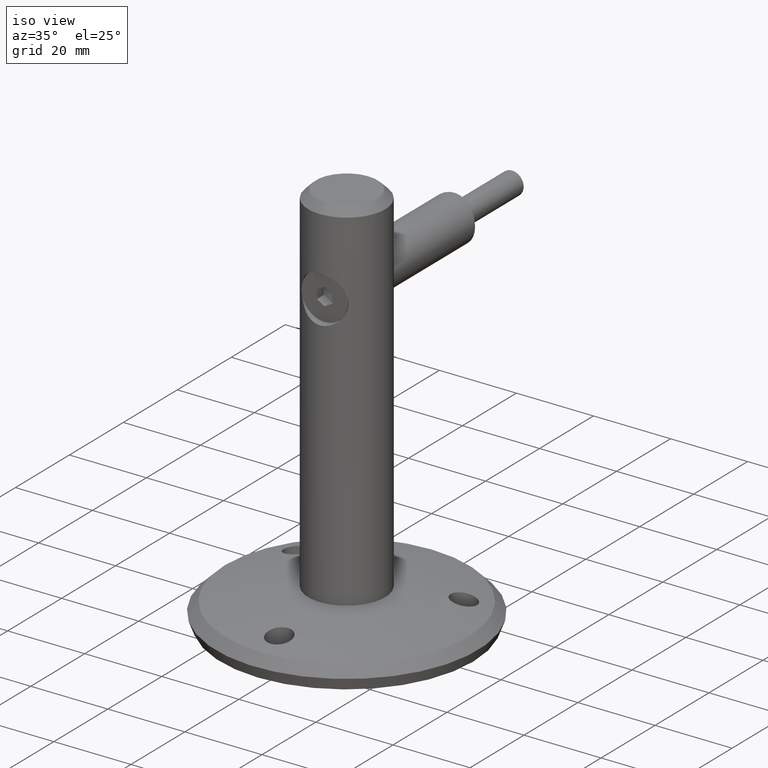
[diagram: clean part render]
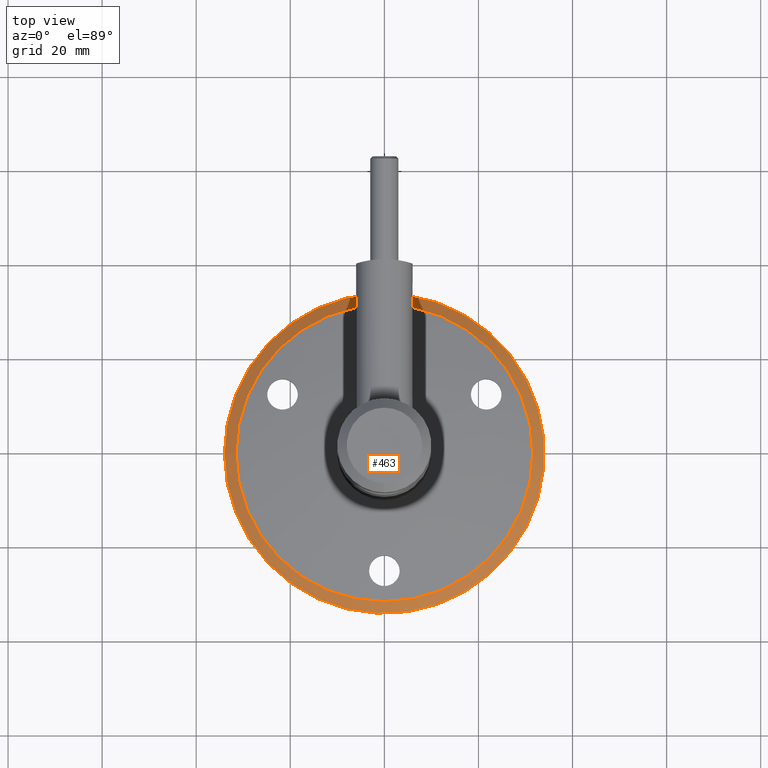
[diagram: tour spotlight — one face highlighted and labeled with its STEP entity id]
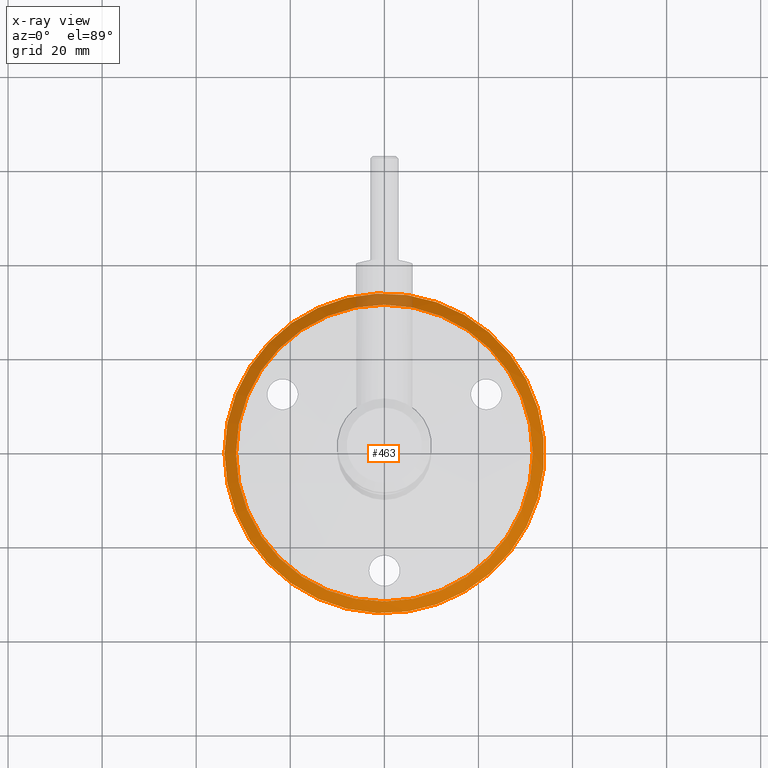
[diagram: x-ray of the same camera — body ghosted, this tour face saturated]
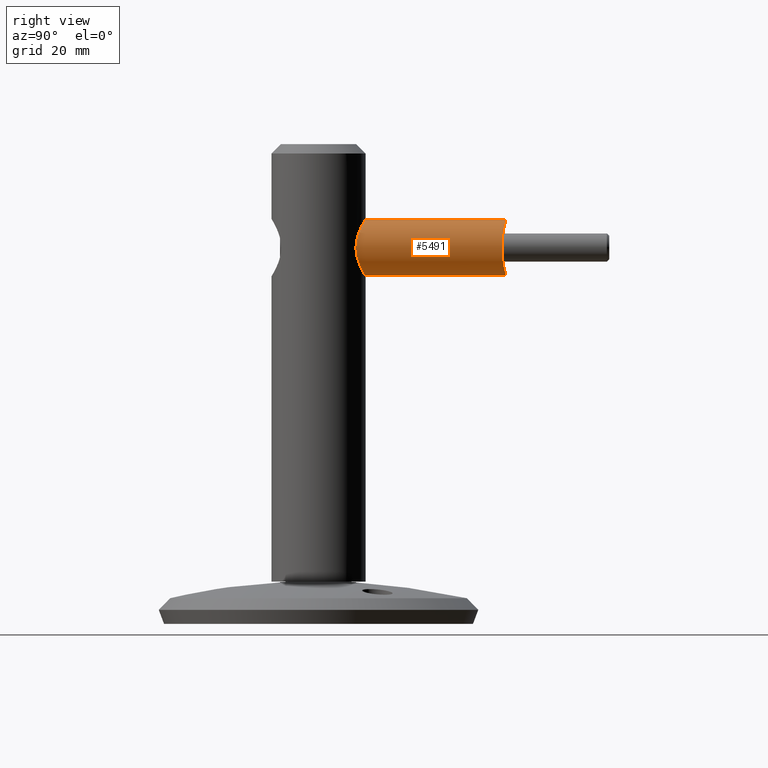
[diagram: tour spotlight — one face highlighted and labeled with its STEP entity id]
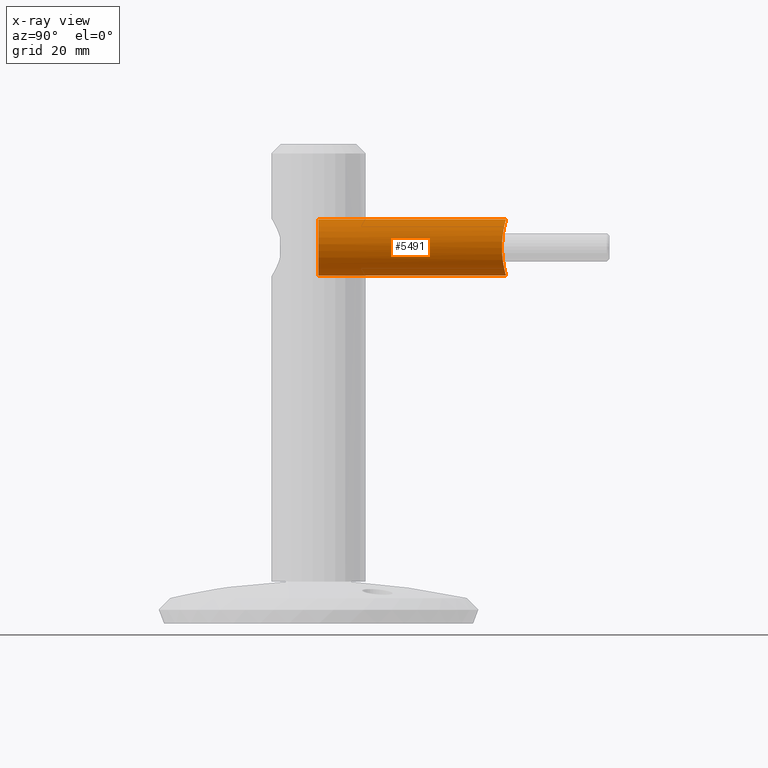
[diagram: x-ray of the same camera — body ghosted, this tour face saturated]
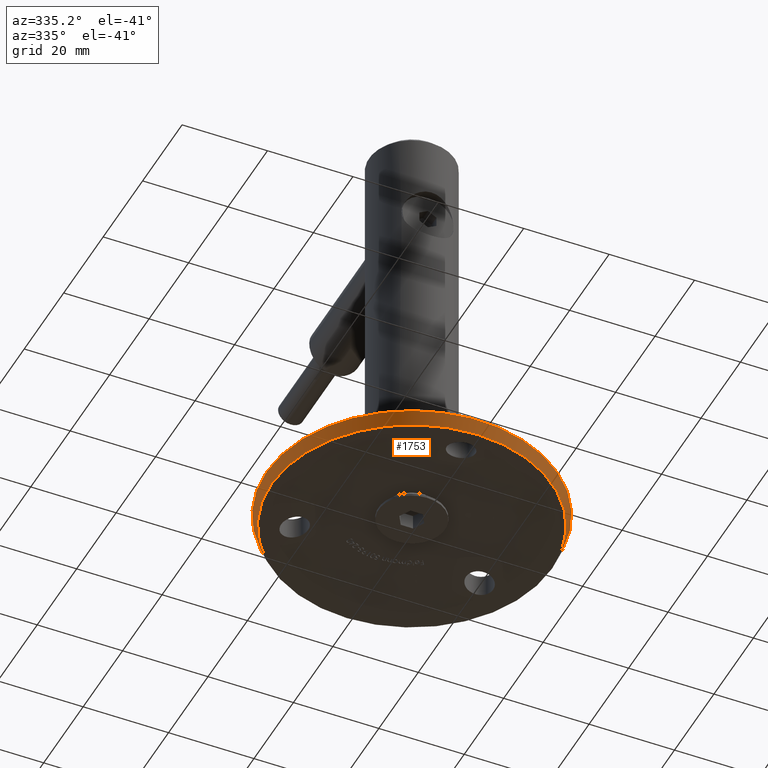
[diagram: tour spotlight — one face highlighted and labeled with its STEP entity id]
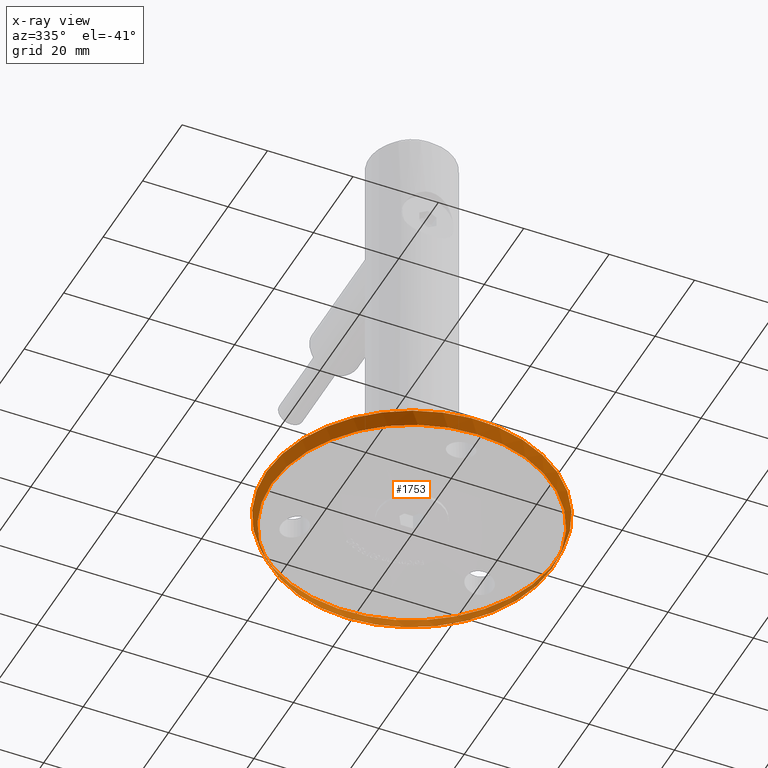
[diagram: x-ray of the same camera — body ghosted, this tour face saturated]
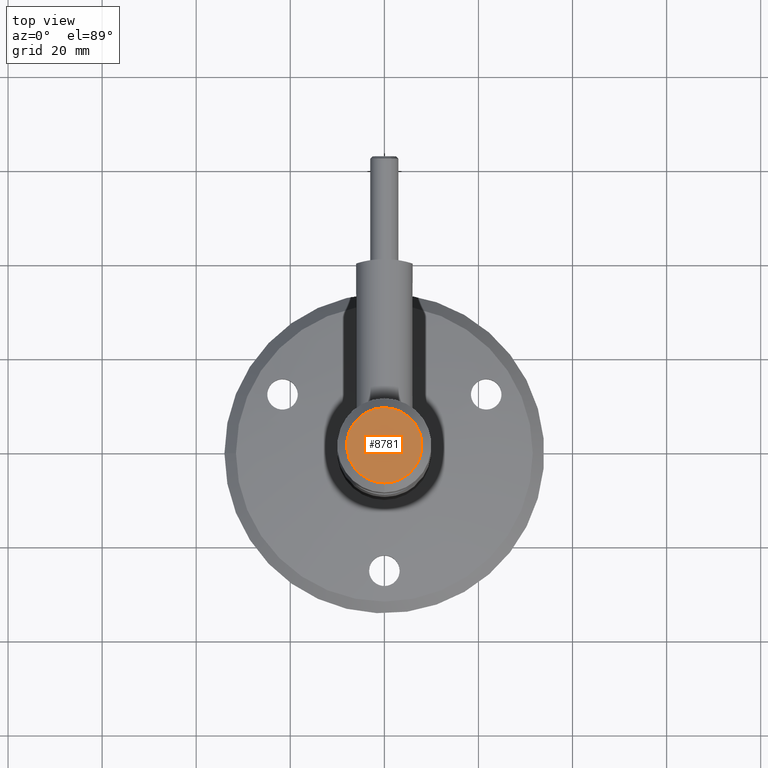
[diagram: tour spotlight — one face highlighted and labeled with its STEP entity id]
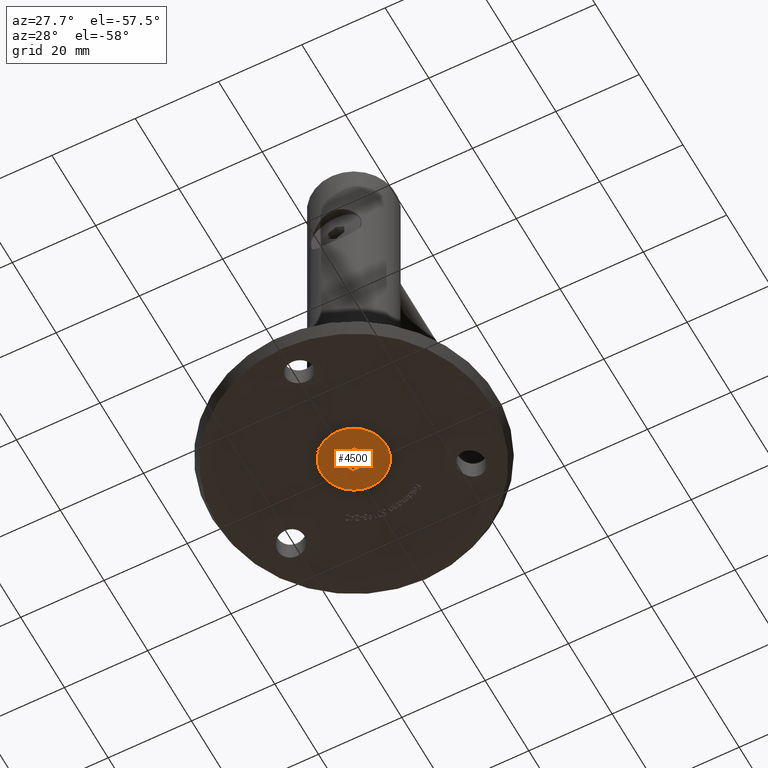
[diagram: tour spotlight — one face highlighted and labeled with its STEP entity id]
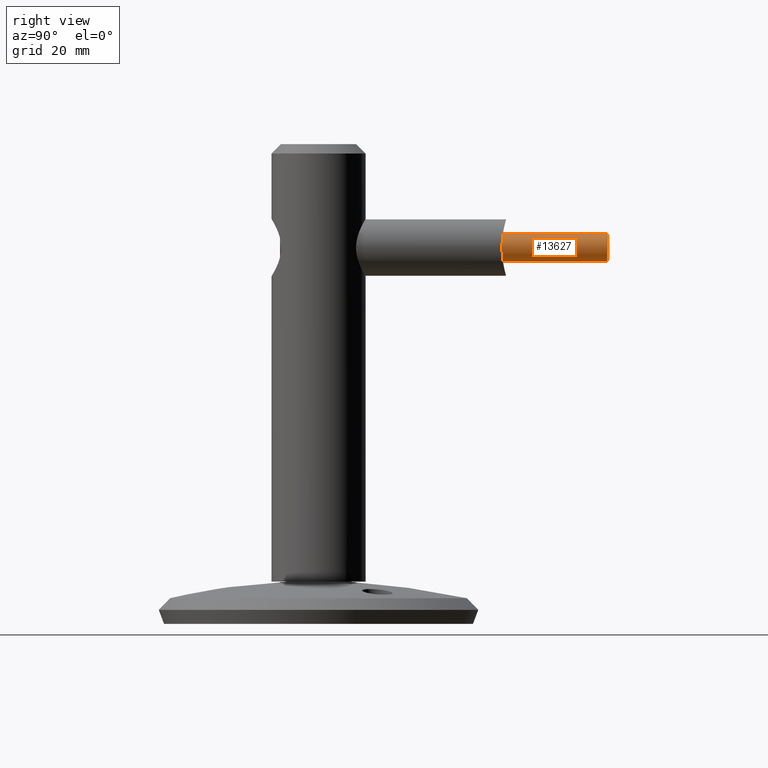
[diagram: tour spotlight — one face highlighted and labeled with its STEP entity id]
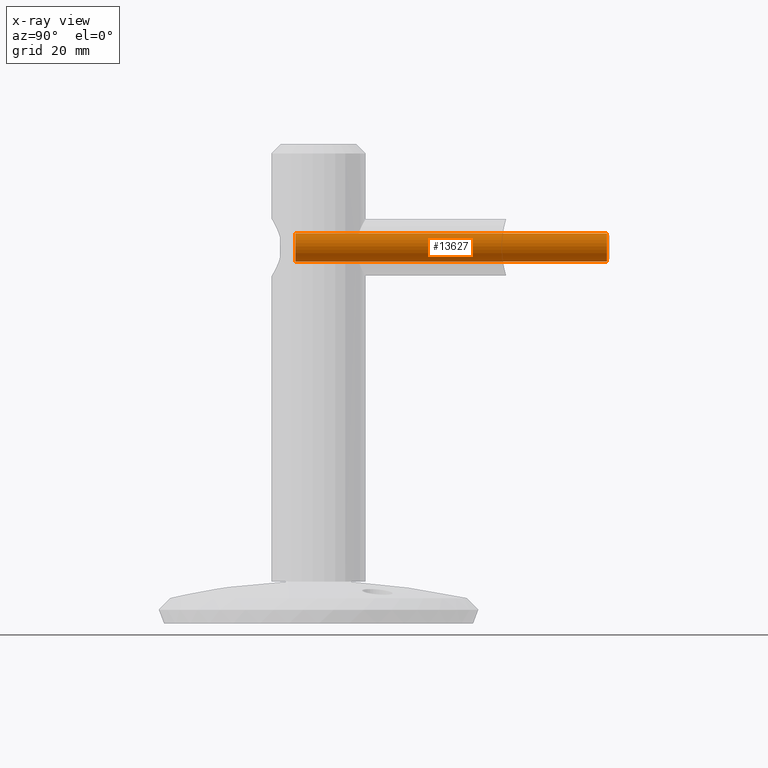
[diagram: x-ray of the same camera — body ghosted, this tour face saturated]
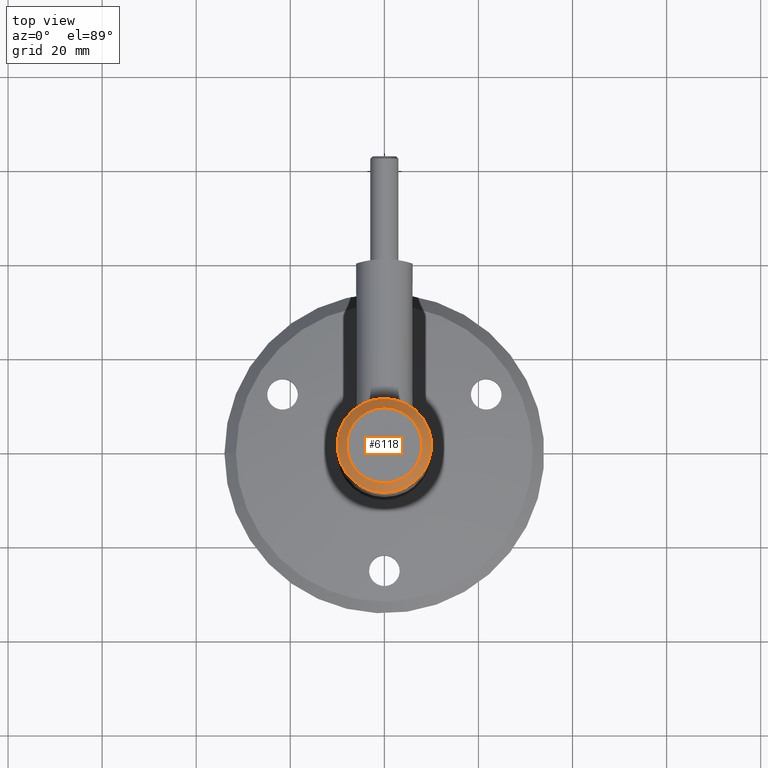
[diagram: tour spotlight — one face highlighted and labeled with its STEP entity id]
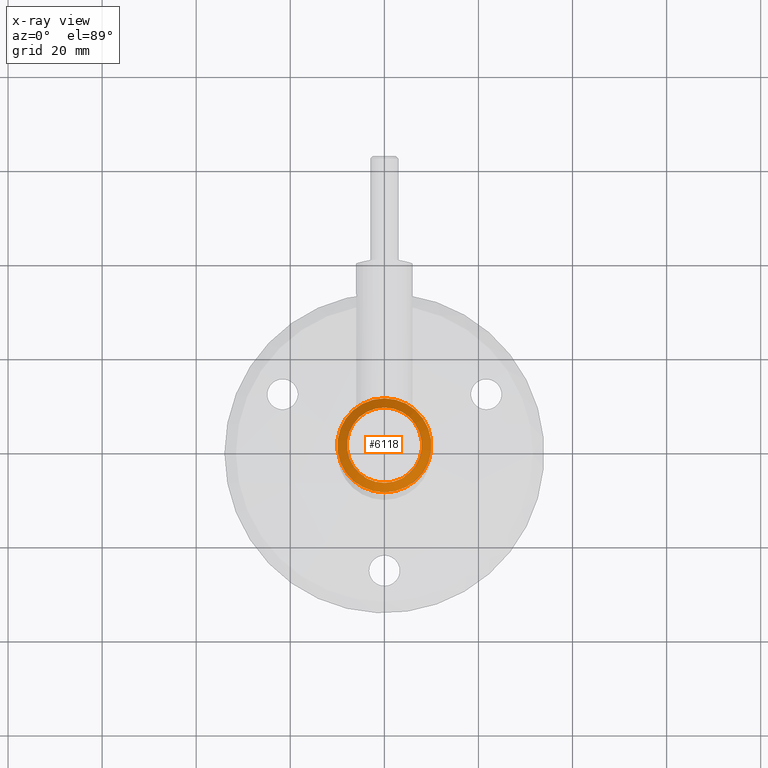
[diagram: x-ray of the same camera — body ghosted, this tour face saturated]
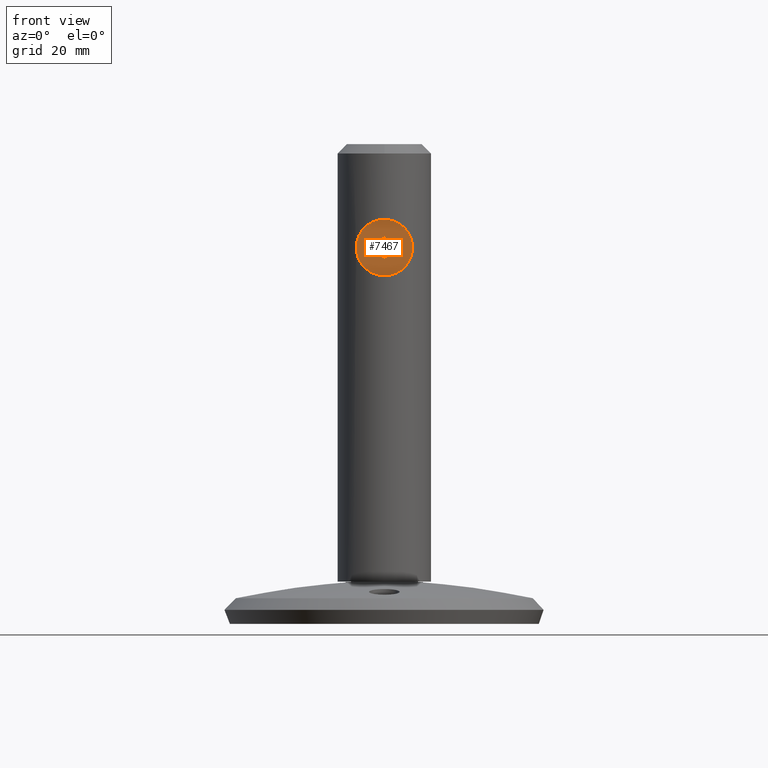
[diagram: tour spotlight — one face highlighted and labeled with its STEP entity id]
A machine part: a face-by-face anatomy tour. The part has 302 B-rep faces; the first image is the clean iso view, then the 8 largest visible faces are spotlighted one at a time (largest first), each with its STEP entity span.

Face 1 — top view, entity #463. An x-ray twin of the same camera follows (body ghosted, this face saturated) — the face is partly hidden behind the body. In plain terms, the highlighted conical surface has half-angle 44.713 deg.
Definition (entity closure, byte-faithful):
#463 = ADVANCED_FACE ( 'NONE', ( #2823, #14457 ), #3738, .T. ) ;
#668 = CARTESIAN_POINT ( 'NONE',  ( -31.55000000000002913, 1.323225072109827538, 0.000000000000000000 ) ) ;
#746 = ORIENTED_EDGE ( 'NONE', *, *, #3955, .F. ) ;
#957 = DIRECTION ( 'NONE',  ( 1.873600393855974325E-19, -1.000000000000000000, 0.000000000000000000 ) ) ;
#1200 = DIRECTION ( 'NONE',  ( -1.000000000000000000, 0.000000000000000000, 0.000000000000000000 ) ) ;
#2663 = EDGE_CURVE ( 'NONE', #5435, #5435, #12436, .T. ) ;
#2823 = FACE_BOUND ( 'NONE', #9307, .T. ) ;
#3738 = CONICAL_SURFACE ( 'NONE', #11033, 34.00000000000002842, 0.7803913443363523772 ) ;
#3955 = EDGE_CURVE ( 'NONE', #14690, #14690, #13344, .T. ) ;
#4212 = CARTESIAN_POINT ( 'NONE',  ( -34.00000000000002842, -1.151432000829118785, 0.000000000000000000 ) ) ;
#4388 = CARTESIAN_POINT ( 'NONE',  ( -2.479195016265073111E-19, 1.323225072109827538, 0.000000000000000000 ) ) ;
#5048 = CARTESIAN_POINT ( 'NONE',  ( 2.157323450251809556E-19, -1.151432000829118785, 0.000000000000000000 ) ) ;
#5435 = VERTEX_POINT ( 'NONE', #4212 ) ;
#8243 = AXIS2_PLACEMENT_3D ( 'NONE', #4388, #8259, #1200 ) ;
#8259 = DIRECTION ( 'NONE',  ( -1.873600393855974325E-19, 1.000000000000000000, 0.000000000000000000 ) ) ;
#9307 = EDGE_LOOP ( 'NONE', ( #746 ) ) ;
#9670 = DIRECTION ( 'NONE',  ( -1.000000000000000000, 0.000000000000000000, 0.000000000000000000 ) ) ;
#10693 = EDGE_LOOP ( 'NONE', ( #14526 ) ) ;
#11033 = AXIS2_PLACEMENT_3D ( 'NONE', #12652, #957, #13889 ) ;
#12027 = DIRECTION ( 'NONE',  ( -1.873600393855974325E-19, 1.000000000000000000, 0.000000000000000000 ) ) ;
#12436 = CIRCLE ( 'NONE', #13267, 34.00000000000002842 ) ;
#12652 = CARTESIAN_POINT ( 'NONE',  ( 2.157323450251809556E-19, -1.151432000829118785, 0.000000000000000000 ) ) ;
#13267 = AXIS2_PLACEMENT_3D ( 'NONE', #5048, #12027, #9670 ) ;
#13344 = CIRCLE ( 'NONE', #8243, 31.55000000000002913 ) ;
#13889 = DIRECTION ( 'NONE',  ( 1.000000000000000000, 0.000000000000000000, 0.000000000000000000 ) ) ;
#14457 = FACE_OUTER_BOUND ( 'NONE', #10693, .T. ) ;
#14526 = ORIENTED_EDGE ( 'NONE', *, *, #2663, .T. ) ;
#14690 = VERTEX_POINT ( 'NONE', #668 ) ;

Face 2 — right view, entity #5491. An x-ray twin of the same camera follows (body ghosted, this face saturated) — the face is partly hidden behind the body. In plain terms, the highlighted cylindrical surface (bore or boss wall) has radius 6 mm, axis along (-0, -1, -0).
Definition (entity closure, byte-faithful):
#38 = CARTESIAN_POINT ( 'NONE',  ( -5.386833150024099126, 39.16582833236981998, 2.671900972921422035 ) ) ;
#90 = CARTESIAN_POINT ( 'NONE',  ( 2.664835474612384125, 39.69604372673916259, 5.389994015634830049 ) ) ;
#139 = CARTESIAN_POINT ( 'NONE',  ( 1.567503375131521270, 39.81010397402161516, 5.805055781419407701 ) ) ;
#313 = CARTESIAN_POINT ( 'NONE',  ( -1.946153451610276974, 39.77700943093032038, -5.689094273853587680 ) ) ;
#420 = DIRECTION ( 'NONE',  ( 0.000000000000000000, 0.000000000000000000, -1.000000000000000000 ) ) ;
#477 = CARTESIAN_POINT ( 'NONE',  ( -4.065758146820641628E-16, 39.86677595657786100, -6.000000000000005329 ) ) ;
#527 = VERTEX_POINT ( 'NONE', #1968 ) ;
#896 = CARTESIAN_POINT ( 'NONE',  ( 4.765923523361857761, 39.31678615650366737, -3.666256703641651793 ) ) ;
#1007 = CARTESIAN_POINT ( 'NONE',  ( 3.657769163878172858, 39.54093268571426023, -4.760172760344627996 ) ) ;
#1052 = CARTESIAN_POINT ( 'NONE',  ( 5.844901919903467302, 39.04340544364730192, -1.369747224913459016 ) ) ;
#1106 = CARTESIAN_POINT ( 'NONE',  ( 3.011013073439819721, 39.64755117411137775, -5.204515888465341078 ) ) ;
#1156 = CARTESIAN_POINT ( 'NONE',  ( -5.999927452249055548, 39.00002053238108601, 0.1999779353303321183 ) ) ;
#1189 = CARTESIAN_POINT ( 'NONE',  ( -3.501205410230786352, 39.56816536352720703, -4.876473460912020386 ) ) ;
#1202 = CARTESIAN_POINT ( 'NONE',  ( -3.661968182206890798, 39.54213979777393462, 4.768948702656751415 ) ) ;
#1251 = CARTESIAN_POINT ( 'NONE',  ( 3.964897188831766339, 39.48559125265645520, 4.520324241424016343 ) ) ;
#1876 = CARTESIAN_POINT ( 'NONE',  ( 0.000000000000000000, 0.000000000000000000, 6.000000000000000888 ) ) ;
#1968 = CARTESIAN_POINT ( 'NONE',  ( 0.000000000000000000, 39.86677595657786100, -6.000000000000005329 ) ) ;
#2147 = CARTESIAN_POINT ( 'NONE',  ( 3.498965885800042308, 39.56854342216529830, -4.878066632430919647 ) ) ;
#2195 = CARTESIAN_POINT ( 'NONE',  ( 5.961138535017029838, 39.01109649585257699, -0.7881440351434979563 ) ) ;
#2249 = CARTESIAN_POINT ( 'NONE',  ( 4.761943770666029252, 39.31695757805032798, 3.655430837228719199 ) ) ;
#2298 = CARTESIAN_POINT ( 'NONE',  ( -3.962704692263843587, 39.48476583380182348, -4.509470939277636425 ) ) ;
#2347 = CARTESIAN_POINT ( 'NONE',  ( -5.201538773815626016, 39.21305920851091287, 3.015902784871267173 ) ) ;
#2405 = CARTESIAN_POINT ( 'NONE',  ( -5.206670629820550289, 39.21181039528246970, -3.007664344769980236 ) ) ;
#2445 = CARTESIAN_POINT ( 'NONE',  ( -3.012515206503591614, 39.64733855584797340, -5.203698981399575985 ) ) ;
#2699 = VERTEX_POINT ( 'NONE', #1876 ) ;
#3028 = CARTESIAN_POINT ( 'NONE',  ( 0.000000000000000000, 0.000000000000000000, 0.000000000000000000 ) ) ;
#3372 = CARTESIAN_POINT ( 'NONE',  ( 1.367236165430297135, 39.82176537013745588, -5.845438576508479755 ) ) ;
#3395 = EDGE_LOOP ( 'NONE', ( #14186 ) ) ;
#3472 = CARTESIAN_POINT ( 'NONE',  ( -4.876396344112010617, 39.29047679053014264, 3.501239423540820184 ) ) ;
#3527 = CARTESIAN_POINT ( 'NONE',  ( -5.961545238840422201, 39.01097978293365998, -0.7842338684864926801 ) ) ;
#3580 = CARTESIAN_POINT ( 'NONE',  ( -0.3901985286802360786, 39.86682594959467707, 6.000169419885856392 ) ) ;
#4391 = CARTESIAN_POINT ( 'NONE',  ( 6.000251675647406024, 38.99992877105675149, 0.3897490360429158862 ) ) ;
#4545 = CARTESIAN_POINT ( 'NONE',  ( 5.692795006294950610, 39.08539385714366432, 1.935948924808809091 ) ) ;
#4649 = CARTESIAN_POINT ( 'NONE',  ( 1.941559548024174298, 39.77745049638600250, 5.690670445282177248 ) ) ;
#4698 = CARTESIAN_POINT ( 'NONE',  ( -5.807924154963832741, 39.05368734000375497, -1.556618580580950040 ) ) ;
#4749 = CARTESIAN_POINT ( 'NONE',  ( -5.989922815101413001, 39.00285822588044482, 0.3999026621498756318 ) ) ;
#5086 = CARTESIAN_POINT ( 'NONE',  ( -0.7909221023866750411, 39.85505131491337494, -5.960665220070608505 ) ) ;
#5491 = ADVANCED_FACE ( 'NONE', ( #11148, #8075 ), #13333, .T. ) ;
#5571 = CARTESIAN_POINT ( 'NONE',  ( 5.806750453888356311, 39.05401038843587713, 1.560857445958442113 ) ) ;
#5621 = CARTESIAN_POINT ( 'NONE',  ( 0.3985892450475845838, 39.86677595657786100, -6.000000000000006217 ) ) ;
#5725 = CARTESIAN_POINT ( 'NONE',  ( 5.195449595516763885, 39.21370301654191337, 3.007612715470314946 ) ) ;
#5822 = CARTESIAN_POINT ( 'NONE',  ( -1.562611765488401527, 39.81053209538111304, 5.806559744401100787 ) ) ;
#5876 = CARTESIAN_POINT ( 'NONE',  ( -2.660947525847901840, 39.69654741239466489, 5.391900104547988626 ) ) ;
#5931 = CARTESIAN_POINT ( 'NONE',  ( -4.768297944891230600, 39.31624197785775010, -3.663167832216072117 ) ) ;
#6790 = CARTESIAN_POINT ( 'NONE',  ( 0.7900868887068148716, 39.85505751095912075, -5.960680350720851450 ) ) ;
#6944 = CARTESIAN_POINT ( 'NONE',  ( -5.691438736089949657, 39.08576590913602189, 1.940245167145599803 ) ) ;
#6998 = CARTESIAN_POINT ( 'NONE',  ( -1.937831060823399953, 39.77780336258718563, 5.691927551581161815 ) ) ;
#7049 = CARTESIAN_POINT ( 'NONE',  ( -5.691337181999868378, 39.08577921318724435, -1.939596555399011990 ) ) ;
#7100 = CARTESIAN_POINT ( 'NONE',  ( -4.519492598268759487, 39.37229378453882589, -3.965547715450232769 ) ) ;
#7145 = CIRCLE ( 'NONE', #9153, 6.000000000000000888 ) ;
#7367 = CARTESIAN_POINT ( 'NONE',  ( 0.000000000000000000, 40.00000000000000000, 0.000000000000000000 ) ) ;
#7818 = DIRECTION ( 'NONE',  ( 0.000000000000000000, 0.000000000000000000, 1.000000000000000000 ) ) ;
#7846 = CARTESIAN_POINT ( 'NONE',  ( 5.681128042610279927, 39.08810395496703194, -1.939990309476925079 ) ) ;
#7903 = CARTESIAN_POINT ( 'NONE',  ( 5.796107268626355058, 39.05687349871904246, -1.563303799001977357 ) ) ;
#8002 = CARTESIAN_POINT ( 'NONE',  ( 5.614775507649731878, 39.10591392659193843, -2.124247630394300757 ) ) ;
#8054 = CARTESIAN_POINT ( 'NONE',  ( 5.094890828735287869, 39.23844391682747812, 3.174911366692543258 ) ) ;
#8075 = FACE_OUTER_BOUND ( 'NONE', #10940, .T. ) ;
#8108 = CARTESIAN_POINT ( 'NONE',  ( -5.921367764825414604, 39.02215249593837854, 0.9878383440947947625 ) ) ;
#8159 = CARTESIAN_POINT ( 'NONE',  ( -5.805718344292519539, 39.05429404609162702, 1.564390522937072925 ) ) ;
#8208 = CARTESIAN_POINT ( 'NONE',  ( 0.7893478687381466630, 39.85241174253837926, 5.951139941781342202 ) ) ;
#8892 = CARTESIAN_POINT ( 'NONE',  ( -2.669010410636402764, 39.69549690679677667, -5.387920780962053513 ) ) ;
#9122 = CARTESIAN_POINT ( 'NONE',  ( 2.667242644977275923, 39.69575009362240792, -5.388893713550922726 ) ) ;
#9153 = AXIS2_PLACEMENT_3D ( 'NONE', #3028, #11266, #7818 ) ;
#9174 = CARTESIAN_POINT ( 'NONE',  ( 2.123116885718334679, 39.75702698885454112, -5.615243929284035929 ) ) ;
#9217 = EDGE_CURVE ( 'NONE', #2699, #2699, #7145, .T. ) ;
#9224 = CARTESIAN_POINT ( 'NONE',  ( 4.878137923113206931, 39.29007052933531696, 3.498820536433562278 ) ) ;
#9275 = CARTESIAN_POINT ( 'NONE',  ( -4.106992825656436530, 39.45658482113101684, -4.378407865575820068 ) ) ;
#9325 = CARTESIAN_POINT ( 'NONE',  ( 0.3956218705733524077, 39.86387956119002496, 5.990210346896905236 ) ) ;
#9368 = CARTESIAN_POINT ( 'NONE',  ( -5.390943988667642905, 39.16476105189169488, -2.662907551526740413 ) ) ;
#9416 = AXIS2_PLACEMENT_3D ( 'NONE', #7367, #12051, #420 ) ;
#9806 = CARTESIAN_POINT ( 'NONE',  ( -0.3985892450475783666, 39.86677595657786100, -6.000000000000004441 ) ) ;
#10060 = ORIENTED_EDGE ( 'NONE', *, *, #9217, .T. ) ;
#10299 = CARTESIAN_POINT ( 'NONE',  ( 4.518240597640136080, 39.37256728680340956, -3.966981472210573401 ) ) ;
#10348 = CARTESIAN_POINT ( 'NONE',  ( 1.557924483062337551, 39.80804861411755979, -5.797576013936588168 ) ) ;
#10401 = CARTESIAN_POINT ( 'NONE',  ( 4.513671942983465080, 39.37216797813942293, 3.957909634121464570 ) ) ;
#10451 = CARTESIAN_POINT ( 'NONE',  ( -3.660191764305794404, 39.54050092974598840, -4.758293063566747527 ) ) ;
#10497 = CARTESIAN_POINT ( 'NONE',  ( -6.000143897955428685, 38.99995927416605923, -0.3933899227371496776 ) ) ;
#10549 = CARTESIAN_POINT ( 'NONE',  ( -3.962785689061535166, 39.48599111327883548, 4.522115018280371324 ) ) ;
#10940 = EDGE_LOOP ( 'NONE', ( #10060 ) ) ;
#11148 = FACE_OUTER_BOUND ( 'NONE', #3395, .T. ) ;
#11266 = DIRECTION ( 'NONE',  ( 0.000000000000000000, 1.000000000000000000, 0.000000000000000000 ) ) ;
#11352 = CARTESIAN_POINT ( 'NONE',  ( 5.389766625641879472, 39.16506150798010566, -2.665134838478793622 ) ) ;
#11449 = CARTESIAN_POINT ( 'NONE',  ( 5.204722612134082382, 39.21229572173453448, -3.011034336946596834 ) ) ;
#11504 = CARTESIAN_POINT ( 'NONE',  ( 5.999745847056054515, 39.00007193006484130, -0.3974597500873098266 ) ) ;
#11549 = CARTESIAN_POINT ( 'NONE',  ( 4.380825007029515383, 39.40064405442517170, 4.104486264952998731 ) ) ;
#11592 = CARTESIAN_POINT ( 'NONE',  ( 3.664215921708836365, 39.54172738377531715, 4.767146937731932432 ) ) ;
#11642 = CARTESIAN_POINT ( 'NONE',  ( -4.378212937087820222, 39.40119301599449386, 4.107255792072586509 ) ) ;
#11697 = CARTESIAN_POINT ( 'NONE',  ( -5.950597231365541973, 39.01393732966914030, 0.7934040963668894664 ) ) ;
#12051 = DIRECTION ( 'NONE',  ( -0.000000000000000000, -1.000000000000000000, -0.000000000000000000 ) ) ;
#12492 = CARTESIAN_POINT ( 'NONE',  ( 5.960796601360714320, 39.01119111555727414, 0.7896395871175068137 ) ) ;
#12647 = CARTESIAN_POINT ( 'NONE',  ( 5.465773555087816149, 39.14508727276316336, 2.482795350062896755 ) ) ;
#12751 = CARTESIAN_POINT ( 'NONE',  ( -4.760085766081402880, 39.31738281500876298, 3.657866959875105906 ) ) ;
#12808 = CARTESIAN_POINT ( 'NONE',  ( -4.511241239789248070, 39.37269624944178759, 3.960695604691363947 ) ) ;
#12856 = CARTESIAN_POINT ( 'NONE',  ( 0.9871179606022800757, 39.84374542928060237, 5.921531304989133382 ) ) ;
#13333 = CYLINDRICAL_SURFACE ( 'NONE', #9416, 6.000000000000000888 ) ;
#13678 = CARTESIAN_POINT ( 'NONE',  ( 5.380694415465658409, 39.16707730792103348, 2.662059043896415123 ) ) ;
#13729 = B_SPLINE_CURVE_WITH_KNOTS ( 'NONE', 3,
 ( #13830, #5621, #6790, #3372, #10348, #14900, #9174, #9122, #1106, #2147, #1007, #14803, #14845, #10299, #896, #11449, #11352, #8002, #7846, #7903, #1052, #2195, #11504, #4391, #12492, #5571, #4545, #12647, #13678, #5725, #8054, #9224, #2249, #10401, #11549, #1251, #11592, #13935, #90, #4649, #139, #12856, #8208, #9325, #13985, #3580, #14039, #5822, #6998, #5876, #15051, #1202, #10549, #11642, #12808, #12751, #3472, #2347, #38, #6944, #8159, #8108, #11697, #4749, #1156, #10497, #3527, #4698, #7049, #9368, #2405, #5931, #7100, #9275, #2298, #10451, #1189, #2445, #8892, #313, #14305, #5086, #9806, #477 ),
 .UNSPECIFIED., .T., .F.,
 ( 4, 2, 2, 2, 2, 2, 2, 2, 2, 2, 2, 2, 2, 2, 2, 2, 2, 2, 2, 2, 2, 2, 2, 2, 2, 2, 2, 2, 2, 2, 2, 2, 2, 2, 2, 2, 2, 2, 2, 2, 2, 4 ),
 ( 0.000000000000000000, 0.001178294353801495565, 0.001767441530702242372, 0.002356588707602989396, 0.003534883061404480407, 0.004124030238305224395, 0.004713177415205969251, 0.005891471769007461563, 0.007069766122808953876, 0.007658913299709699599, 0.008248060476610445321, 0.009426354830411935032, 0.01060464918421342474, 0.01178294353801491445, 0.01237209071491566365, 0.01296123789181641110, 0.01355038506871715856, 0.01413953224561790602, 0.01531782659941939920, 0.01649612095322089064, 0.01767441530702238556, 0.01826356248392313475, 0.01885270966082388047, 0.02003100401462537539, 0.02120929836842687030, 0.02238759272222836869, 0.02356588707602986360, 0.02415503425293061279, 0.02474418142983135852, 0.02592247578363284649, 0.02710077013743433794, 0.02768991731433508019, 0.02827906449123582591, 0.02945735884503731042, 0.03063565319883879839, 0.03181394755264028290, 0.03299224190644177435, 0.03358138908334251660, 0.03417053626024326579, 0.03534883061404474336, 0.03652712496784622787, 0.03770541932164770543 ),
 .UNSPECIFIED. ) ;
#13780 = EDGE_CURVE ( 'NONE', #527, #527, #13729, .T. ) ;
#13830 = CARTESIAN_POINT ( 'NONE',  ( -4.065758146820641628E-16, 39.86677595657786100, -6.000000000000005329 ) ) ;
#13935 = CARTESIAN_POINT ( 'NONE',  ( 3.016110755655896813, 39.64678435729003780, 5.201465577743286772 ) ) ;
#13985 = CARTESIAN_POINT ( 'NONE',  ( 0.1989940060684033396, 39.86675071139577398, 5.999914447334082190 ) ) ;
#14039 = CARTESIAN_POINT ( 'NONE',  ( -0.7832332020948788998, 39.85541595036397666, 5.961915576899625258 ) ) ;
#14186 = ORIENTED_EDGE ( 'NONE', *, *, #13780, .T. ) ;
#14305 = CARTESIAN_POINT ( 'NONE',  ( -1.563240252272107833, 39.81041689212141677, -5.806149115504993574 ) ) ;
#14803 = CARTESIAN_POINT ( 'NONE',  ( 3.961035543833129502, 39.48508774772431451, -4.510955263027512707 ) ) ;
#14845 = CARTESIAN_POINT ( 'NONE',  ( 4.105525896893261972, 39.45687567599317447, -4.379785055764167545 ) ) ;
#14900 = CARTESIAN_POINT ( 'NONE',  ( 1.935861042096272522, 39.77569803876828303, -5.682557378328164432 ) ) ;
#15051 = CARTESIAN_POINT ( 'NONE',  ( -3.012068843146921360, 39.64739102004135418, 5.203875861337464492 ) ) ;

Face 3 — auxiliary view, entity #1753. An x-ray twin of the same camera follows (body ghosted, this face saturated) — the face is partly hidden behind the body. In plain terms, the highlighted conical surface has half-angle 21.287 deg.
Definition (entity closure, byte-faithful):
#407 = CIRCLE ( 'NONE', #6058, 32.83464896222004370 ) ;
#710 = EDGE_LOOP ( 'NONE', ( #12739 ) ) ;
#878 = DIRECTION ( 'NONE',  ( -1.000000000000000000, 0.000000000000000000, 0.000000000000000000 ) ) ;
#1753 = ADVANCED_FACE ( 'NONE', ( #14473, #11570 ), #3196, .T. ) ;
#2663 = EDGE_CURVE ( 'NONE', #5435, #5435, #12436, .T. ) ;
#3196 = CONICAL_SURFACE ( 'NONE', #4718, 32.83464896222004370, 0.3715259619799057278 ) ;
#3972 = VERTEX_POINT ( 'NONE', #12364 ) ;
#4189 = DIRECTION ( 'NONE',  ( -1.873600393855974325E-19, 1.000000000000000000, 0.000000000000000000 ) ) ;
#4212 = CARTESIAN_POINT ( 'NONE',  ( -34.00000000000002842, -1.151432000829118785, 0.000000000000000000 ) ) ;
#4718 = AXIS2_PLACEMENT_3D ( 'NONE', #12472, #6827, #878 ) ;
#5048 = CARTESIAN_POINT ( 'NONE',  ( 2.157323450251809556E-19, -1.151432000829118785, 0.000000000000000000 ) ) ;
#5435 = VERTEX_POINT ( 'NONE', #4212 ) ;
#6058 = AXIS2_PLACEMENT_3D ( 'NONE', #13681, #4189, #6646 ) ;
#6646 = DIRECTION ( 'NONE',  ( -1.000000000000000000, 0.000000000000000000, 0.000000000000000000 ) ) ;
#6827 = DIRECTION ( 'NONE',  ( -1.873600393855974325E-19, 1.000000000000000000, 0.000000000000000000 ) ) ;
#9453 = EDGE_CURVE ( 'NONE', #3972, #3972, #407, .T. ) ;
#9670 = DIRECTION ( 'NONE',  ( -1.000000000000000000, 0.000000000000000000, 0.000000000000000000 ) ) ;
#10050 = EDGE_LOOP ( 'NONE', ( #11346 ) ) ;
#11346 = ORIENTED_EDGE ( 'NONE', *, *, #2663, .F. ) ;
#11570 = FACE_BOUND ( 'NONE', #710, .T. ) ;
#12027 = DIRECTION ( 'NONE',  ( -1.873600393855974325E-19, 1.000000000000000000, 0.000000000000000000 ) ) ;
#12364 = CARTESIAN_POINT ( 'NONE',  ( -32.83464896222004370, -4.142427981893799682, 0.000000000000000000 ) ) ;
#12436 = CIRCLE ( 'NONE', #13267, 34.00000000000002842 ) ;
#12472 = CARTESIAN_POINT ( 'NONE',  ( 7.761254698396231712E-19, -4.142427981893799682, 0.000000000000000000 ) ) ;
#12739 = ORIENTED_EDGE ( 'NONE', *, *, #9453, .T. ) ;
#13267 = AXIS2_PLACEMENT_3D ( 'NONE', #5048, #12027, #9670 ) ;
#13681 = CARTESIAN_POINT ( 'NONE',  ( 7.761254698396231712E-19, -4.142427981893799682, 0.000000000000000000 ) ) ;
#14473 = FACE_OUTER_BOUND ( 'NONE', #10050, .T. ) ;

Face 4 — top view, entity #8781. In plain terms, the highlighted planar face has unit normal (0, -0, 1).
Definition (entity closure, byte-faithful):
#1012 = EDGE_LOOP ( 'NONE', ( #8041 ) ) ;
#1729 = AXIS2_PLACEMENT_3D ( 'NONE', #11465, #7863, #14910 ) ;
#2071 = DIRECTION ( 'NONE',  ( 0.000000000000000000, -1.224646799147353454E-16, 1.000000000000000000 ) ) ;
#5208 = EDGE_CURVE ( 'NONE', #6538, #6538, #8088, .T. ) ;
#6538 = VERTEX_POINT ( 'NONE', #14670 ) ;
#6910 = PLANE ( 'NONE',  #1729 ) ;
#7858 = AXIS2_PLACEMENT_3D ( 'NONE', #13655, #2071, #10220 ) ;
#7863 = DIRECTION ( 'NONE',  ( 0.000000000000000000, -1.224646799147353454E-16, 1.000000000000000000 ) ) ;
#8041 = ORIENTED_EDGE ( 'NONE', *, *, #5208, .T. ) ;
#8088 = CIRCLE ( 'NONE', #7858, 7.999999999999956479 ) ;
#8781 = ADVANCED_FACE ( 'NONE', ( #14391 ), #6910, .T. ) ;
#10220 = DIRECTION ( 'NONE',  ( 0.000000000000000000, -1.000000000000000000, 0.000000000000000000 ) ) ;
#11465 = CARTESIAN_POINT ( 'NONE',  ( 0.000000000000000000, -1.163414459189985643E-14, 95.00000000000000000 ) ) ;
#13655 = CARTESIAN_POINT ( 'NONE',  ( 0.000000000000000000, -1.163414459189985801E-14, 95.00000000000000000 ) ) ;
#14391 = FACE_OUTER_BOUND ( 'NONE', #1012, .T. ) ;
#14670 = CARTESIAN_POINT ( 'NONE',  ( 0.000000000000000000, -7.999999999999968914, 95.00000000000000000 ) ) ;
#14910 = DIRECTION ( 'NONE',  ( 0.000000000000000000, -1.000000000000000000, -1.224646799147353454E-16 ) ) ;

Face 5 — auxiliary view, entity #4500. In plain terms, the highlighted planar face has unit normal (-0, -0, -1).
Definition (entity closure, byte-faithful):
#418 = VERTEX_POINT ( 'NONE', #12700 ) ;
#707 = LINE ( 'NONE', #9209, #13224 ) ;
#921 = VECTOR ( 'NONE', #10265, 1000.000000000000114 ) ;
#1528 = DIRECTION ( 'NONE',  ( 3.081487911019581744E-32, -0.5000000000000011102, -0.8660254037844379305 ) ) ;
#1544 = EDGE_LOOP ( 'NONE', ( #7409, #9293, #10335, #1591, #8592, #6306 ) ) ;
#1591 = ORIENTED_EDGE ( 'NONE', *, *, #6427, .T. ) ;
#2064 = ORIENTED_EDGE ( 'NONE', *, *, #3561, .T. ) ;
#2824 = CIRCLE ( 'NONE', #15035, 7.784999999999987708 ) ;
#3261 = LINE ( 'NONE', #9096, #921 ) ;
#3524 = CARTESIAN_POINT ( 'NONE',  ( 0.000000000000000000, 2.898298351331922262, 2.155380908416140619E-15 ) ) ;
#3561 = EDGE_CURVE ( 'NONE', #7623, #7623, #2824, .T. ) ;
#3808 = DIRECTION ( 'NONE',  ( -2.465190328815665724E-32, 6.800116025829088740E-16, 1.000000000000000000 ) ) ;
#4409 = LINE ( 'NONE', #3524, #5884 ) ;
#4500 = ADVANCED_FACE ( 'NONE', ( #13539, #12423 ), #9551, .T. ) ;
#4837 = AXIS2_PLACEMENT_3D ( 'NONE', #4927, #13043, #3808 ) ;
#4927 = CARTESIAN_POINT ( 'NONE',  ( 0.000000000000000000, 0.000000000000000000, 0.000000000000000000 ) ) ;
#5075 = VERTEX_POINT ( 'NONE', #6623 ) ;
#5295 = EDGE_CURVE ( 'NONE', #9738, #13591, #6637, .T. ) ;
#5353 = DIRECTION ( 'NONE',  ( 2.295404399507837969E-32, -1.000000000000000000, -6.800116025829076908E-16 ) ) ;
#5387 = CARTESIAN_POINT ( 'NONE',  ( -1.919150670982992818E-31, 5.293890326107937455E-15, 7.784999999999987708 ) ) ;
#5425 = VERTEX_POINT ( 'NONE', #12004 ) ;
#5685 = CARTESIAN_POINT ( 'NONE',  ( 0.000000000000000000, 0.000000000000000000, 0.000000000000000000 ) ) ;
#5884 = VECTOR ( 'NONE', #10547, 1000.000000000000227 ) ;
#6306 = ORIENTED_EDGE ( 'NONE', *, *, #12473, .T. ) ;
#6427 = EDGE_CURVE ( 'NONE', #5425, #6589, #12757, .T. ) ;
#6589 = VERTEX_POINT ( 'NONE', #7841 ) ;
#6621 = EDGE_CURVE ( 'NONE', #6589, #5075, #4409, .T. ) ;
#6623 = CARTESIAN_POINT ( 'NONE',  ( 0.000000000000000000, 1.449149175665964240, 2.509999999999996678 ) ) ;
#6637 = LINE ( 'NONE', #9301, #12412 ) ;
#7189 = DIRECTION ( 'NONE',  ( -2.295404399507837421E-32, 1.000000000000000000, 3.807457462607648955E-16 ) ) ;
#7300 = DIRECTION ( 'NONE',  ( -3.081487911019579554E-32, 0.5000000000000013323, 0.8660254037844378194 ) ) ;
#7409 = ORIENTED_EDGE ( 'NONE', *, *, #5295, .T. ) ;
#7623 = VERTEX_POINT ( 'NONE', #5387 ) ;
#7841 = CARTESIAN_POINT ( 'NONE',  ( 0.000000000000000000, 2.898298351331922262, 2.155380908416140619E-15 ) ) ;
#8547 = VECTOR ( 'NONE', #5353, 1000.000000000000000 ) ;
#8592 = ORIENTED_EDGE ( 'NONE', *, *, #6621, .T. ) ;
#9096 = CARTESIAN_POINT ( 'NONE',  ( 0.000000000000000000, -2.898298351331920042, -1.988622099621732099E-15 ) ) ;
#9209 = CARTESIAN_POINT ( 'NONE',  ( 0.000000000000000000, -1.449149175665962463, -2.509999999999996234 ) ) ;
#9293 = ORIENTED_EDGE ( 'NONE', *, *, #14789, .T. ) ;
#9301 = CARTESIAN_POINT ( 'NONE',  ( 0.000000000000000000, -1.449149175665956690, 2.509999999999990461 ) ) ;
#9551 = PLANE ( 'NONE',  #4837 ) ;
#9686 = CARTESIAN_POINT ( 'NONE',  ( 0.000000000000000000, -2.898298351331920042, -1.754036072155517180E-15 ) ) ;
#9738 = VERTEX_POINT ( 'NONE', #10828 ) ;
#9774 = CARTESIAN_POINT ( 'NONE',  ( 0.000000000000000000, 1.449149175665958245, -2.509999999999990905 ) ) ;
#10265 = DIRECTION ( 'NONE',  ( 1.694818351060770288E-32, 0.5000000000000003331, -0.8660254037844383745 ) ) ;
#10335 = ORIENTED_EDGE ( 'NONE', *, *, #13010, .T. ) ;
#10547 = DIRECTION ( 'NONE',  ( -1.694818351060770288E-32, -0.5000000000000004441, 0.8660254037844382635 ) ) ;
#10828 = CARTESIAN_POINT ( 'NONE',  ( 0.000000000000000000, -1.449149175665956690, 2.509999999999990461 ) ) ;
#10900 = LINE ( 'NONE', #14594, #8547 ) ;
#11411 = DIRECTION ( 'NONE',  ( -2.465190328815665724E-32, 6.800116025829088740E-16, 1.000000000000000000 ) ) ;
#12004 = CARTESIAN_POINT ( 'NONE',  ( 0.000000000000000000, 1.449149175665958245, -2.509999999999990905 ) ) ;
#12412 = VECTOR ( 'NONE', #1528, 1000.000000000000114 ) ;
#12423 = FACE_BOUND ( 'NONE', #1544, .T. ) ;
#12473 = EDGE_CURVE ( 'NONE', #5075, #9738, #10900, .T. ) ;
#12608 = DIRECTION ( 'NONE',  ( -1.000000000000000000, 2.295404399507841800E-32, 1.848892746611749156E-32 ) ) ;
#12700 = CARTESIAN_POINT ( 'NONE',  ( 0.000000000000000000, -1.449149175665962463, -2.509999999999996234 ) ) ;
#12757 = LINE ( 'NONE', #9774, #13667 ) ;
#13010 = EDGE_CURVE ( 'NONE', #418, #5425, #707, .T. ) ;
#13037 = EDGE_LOOP ( 'NONE', ( #2064 ) ) ;
#13043 = DIRECTION ( 'NONE',  ( -1.000000000000000000, 2.295404399507838790E-32, -2.465190328815667366E-32 ) ) ;
#13224 = VECTOR ( 'NONE', #7189, 1000.000000000000000 ) ;
#13539 = FACE_OUTER_BOUND ( 'NONE', #13037, .T. ) ;
#13591 = VERTEX_POINT ( 'NONE', #9686 ) ;
#13667 = VECTOR ( 'NONE', #7300, 1000.000000000000114 ) ;
#14594 = CARTESIAN_POINT ( 'NONE',  ( 0.000000000000000000, 1.449149175665964240, 2.509999999999996678 ) ) ;
#14789 = EDGE_CURVE ( 'NONE', #13591, #418, #3261, .T. ) ;
#15035 = AXIS2_PLACEMENT_3D ( 'NONE', #5685, #12608, #11411 ) ;

Face 6 — right view, entity #13627. An x-ray twin of the same camera follows (body ghosted, this face saturated) — the face is partly hidden behind the body. In plain terms, the highlighted cylindrical surface (bore or boss wall) has radius 3 mm, axis along (0, 1, -0).
Definition (entity closure, byte-faithful):
#2324 = EDGE_CURVE ( 'NONE', #11615, #11615, #7743, .T. ) ;
#3320 = EDGE_LOOP ( 'NONE', ( #6588 ) ) ;
#4404 = CARTESIAN_POINT ( 'NONE',  ( 0.000000000000000000, -34.50000000000000000, 0.000000000000000000 ) ) ;
#4944 = CIRCLE ( 'NONE', #11481, 3.000000000000000888 ) ;
#5210 = AXIS2_PLACEMENT_3D ( 'NONE', #6962, #10464, #5894 ) ;
#5240 = CYLINDRICAL_SURFACE ( 'NONE', #8810, 3.000000000000000888 ) ;
#5261 = CARTESIAN_POINT ( 'NONE',  ( 0.000000000000000000, -35.00000000000000000, 0.000000000000000000 ) ) ;
#5745 = ORIENTED_EDGE ( 'NONE', *, *, #2324, .T. ) ;
#5894 = DIRECTION ( 'NONE',  ( 0.000000000000000000, 0.000000000000000000, -1.000000000000000000 ) ) ;
#6299 = DIRECTION ( 'NONE',  ( 0.000000000000000000, -1.000000000000000000, 0.000000000000000000 ) ) ;
#6588 = ORIENTED_EDGE ( 'NONE', *, *, #9936, .T. ) ;
#6962 = CARTESIAN_POINT ( 'NONE',  ( 0.000000000000000000, 31.70000000000000639, 0.000000000000000000 ) ) ;
#7743 = CIRCLE ( 'NONE', #5210, 2.999999999999996447 ) ;
#8363 = EDGE_LOOP ( 'NONE', ( #5745 ) ) ;
#8810 = AXIS2_PLACEMENT_3D ( 'NONE', #5261, #6299, #10862 ) ;
#8875 = FACE_OUTER_BOUND ( 'NONE', #8363, .T. ) ;
#8897 = CARTESIAN_POINT ( 'NONE',  ( 0.000000000000000000, 31.70000000000000639, -2.999999999999996447 ) ) ;
#9936 = EDGE_CURVE ( 'NONE', #13231, #13231, #4944, .T. ) ;
#10046 = DIRECTION ( 'NONE',  ( 0.000000000000000000, 0.000000000000000000, -1.000000000000000000 ) ) ;
#10464 = DIRECTION ( 'NONE',  ( 0.000000000000000000, -1.000000000000000000, 0.000000000000000000 ) ) ;
#10862 = DIRECTION ( 'NONE',  ( 0.000000000000000000, 0.000000000000000000, -1.000000000000000000 ) ) ;
#11416 = FACE_OUTER_BOUND ( 'NONE', #3320, .T. ) ;
#11481 = AXIS2_PLACEMENT_3D ( 'NONE', #4404, #13584, #10046 ) ;
#11615 = VERTEX_POINT ( 'NONE', #8897 ) ;
#13231 = VERTEX_POINT ( 'NONE', #14625 ) ;
#13584 = DIRECTION ( 'NONE',  ( -0.000000000000000000, 1.000000000000000000, -0.000000000000000000 ) ) ;
#13627 = ADVANCED_FACE ( 'NONE', ( #11416, #8875 ), #5240, .T. ) ;
#14625 = CARTESIAN_POINT ( 'NONE',  ( 0.000000000000000000, -34.50000000000000000, -3.000000000000000888 ) ) ;

Face 7 — top view, entity #6118. An x-ray twin of the same camera follows (body ghosted, this face saturated) — the face is partly hidden behind the body. In plain terms, the highlighted conical surface has half-angle 45 deg.
Definition (entity closure, byte-faithful):
#1623 = CARTESIAN_POINT ( 'NONE',  ( 0.000000000000000000, -1.138921523207038456E-14, 92.99999999999997158 ) ) ;
#2071 = DIRECTION ( 'NONE',  ( 0.000000000000000000, -1.224646799147353454E-16, 1.000000000000000000 ) ) ;
#2780 = FACE_OUTER_BOUND ( 'NONE', #6053, .T. ) ;
#2974 = AXIS2_PLACEMENT_3D ( 'NONE', #1623, #13284, #10871 ) ;
#3232 = VERTEX_POINT ( 'NONE', #13556 ) ;
#3887 = FACE_BOUND ( 'NONE', #8535, .T. ) ;
#5208 = EDGE_CURVE ( 'NONE', #6538, #6538, #8088, .T. ) ;
#5344 = CONICAL_SURFACE ( 'NONE', #10789, 9.999999999999994671, 0.7853981633974504994 ) ;
#5495 = EDGE_CURVE ( 'NONE', #3232, #3232, #6098, .T. ) ;
#6053 = EDGE_LOOP ( 'NONE', ( #12068 ) ) ;
#6098 = CIRCLE ( 'NONE', #2974, 9.999999999999994671 ) ;
#6118 = ADVANCED_FACE ( 'NONE', ( #3887, #2780 ), #5344, .T. ) ;
#6538 = VERTEX_POINT ( 'NONE', #14670 ) ;
#7858 = AXIS2_PLACEMENT_3D ( 'NONE', #13655, #2071, #10220 ) ;
#8088 = CIRCLE ( 'NONE', #7858, 7.999999999999956479 ) ;
#8535 = EDGE_LOOP ( 'NONE', ( #10433 ) ) ;
#10220 = DIRECTION ( 'NONE',  ( 0.000000000000000000, -1.000000000000000000, 0.000000000000000000 ) ) ;
#10433 = ORIENTED_EDGE ( 'NONE', *, *, #5208, .F. ) ;
#10789 = AXIS2_PLACEMENT_3D ( 'NONE', #11127, #12166, #14633 ) ;
#10871 = DIRECTION ( 'NONE',  ( 0.000000000000000000, -1.000000000000000000, 0.000000000000000000 ) ) ;
#11127 = CARTESIAN_POINT ( 'NONE',  ( 0.000000000000000000, -1.138921523207038456E-14, 92.99999999999997158 ) ) ;
#12068 = ORIENTED_EDGE ( 'NONE', *, *, #5495, .F. ) ;
#12166 = DIRECTION ( 'NONE',  ( -0.000000000000000000, 1.224646799147347784E-16, -1.000000000000000000 ) ) ;
#13284 = DIRECTION ( 'NONE',  ( -0.000000000000000000, 1.224646799147347784E-16, -1.000000000000000000 ) ) ;
#13556 = CARTESIAN_POINT ( 'NONE',  ( 0.000000000000000000, -10.00000000000000711, 92.99999999999997158 ) ) ;
#13655 = CARTESIAN_POINT ( 'NONE',  ( 0.000000000000000000, -1.163414459189985801E-14, 95.00000000000000000 ) ) ;
#14633 = DIRECTION ( 'NONE',  ( 0.000000000000000000, 1.000000000000000000, 0.000000000000000000 ) ) ;
#14670 = CARTESIAN_POINT ( 'NONE',  ( 0.000000000000000000, -7.999999999999968914, 95.00000000000000000 ) ) ;

Face 8 — front view, entity #7467. In plain terms, the highlighted planar face has unit normal (0, -1, 0).
Definition (entity closure, byte-faithful):
#46 = CARTESIAN_POINT ( 'NONE',  ( 0.000000000000000000, 35.00000000000000000, 0.000000000000000000 ) ) ;
#400 = VERTEX_POINT ( 'NONE', #745 ) ;
#745 = CARTESIAN_POINT ( 'NONE',  ( -2.309401076758504701, 35.00000000000000000, 0.000000000000000000 ) ) ;
#768 = FACE_BOUND ( 'NONE', #12286, .T. ) ;
#847 = EDGE_CURVE ( 'NONE', #8608, #400, #7773, .T. ) ;
#993 = CARTESIAN_POINT ( 'NONE',  ( -1.154700538379294095, 35.00000000000000000, -2.000000000000057288 ) ) ;
#1272 = CARTESIAN_POINT ( 'NONE',  ( -1.154700538379294095, 35.00000000000000000, -2.000000000000057288 ) ) ;
#1459 = ORIENTED_EDGE ( 'NONE', *, *, #13805, .F. ) ;
#1548 = VECTOR ( 'NONE', #9049, 1000.000000000000000 ) ;
#2777 = CARTESIAN_POINT ( 'NONE',  ( -1.154700538379252350, 35.00000000000000000, 2.000000000000001776 ) ) ;
#3173 = PLANE ( 'NONE',  #9529 ) ;
#3242 = VECTOR ( 'NONE', #3592, 1000.000000000000000 ) ;
#3303 = ORIENTED_EDGE ( 'NONE', *, *, #7878, .F. ) ;
#3489 = FACE_OUTER_BOUND ( 'NONE', #8694, .T. ) ;
#3552 = AXIS2_PLACEMENT_3D ( 'NONE', #46, #13944, #6952 ) ;
#3592 = DIRECTION ( 'NONE',  ( 0.5000000000000001110, 0.000000000000000000, -0.8660254037844385966 ) ) ;
#4306 = CARTESIAN_POINT ( 'NONE',  ( 2.309401076758504701, 35.00000000000000000, 0.000000000000000000 ) ) ;
#4574 = LINE ( 'NONE', #5727, #13463 ) ;
#4968 = ORIENTED_EDGE ( 'NONE', *, *, #9546, .F. ) ;
#5049 = EDGE_CURVE ( 'NONE', #10270, #8608, #11345, .T. ) ;
#5485 = VERTEX_POINT ( 'NONE', #2777 ) ;
#5647 = CARTESIAN_POINT ( 'NONE',  ( 1.154700538379252350, 35.00000000000000000, -2.000000000000001776 ) ) ;
#5697 = DIRECTION ( 'NONE',  ( 0.000000000000000000, -0.000000000000000000, 1.000000000000000000 ) ) ;
#5727 = CARTESIAN_POINT ( 'NONE',  ( -1.154700538379252350, 35.00000000000000000, 2.000000000000001776 ) ) ;
#5870 = LINE ( 'NONE', #6754, #11666 ) ;
#6158 = ORIENTED_EDGE ( 'NONE', *, *, #5049, .F. ) ;
#6375 = VERTEX_POINT ( 'NONE', #11171 ) ;
#6754 = CARTESIAN_POINT ( 'NONE',  ( -2.309401076758504701, 35.00000000000000000, 0.000000000000000000 ) ) ;
#6847 = DIRECTION ( 'NONE',  ( -0.5000000000000004441, 0.000000000000000000, -0.8660254037844383745 ) ) ;
#6859 = CARTESIAN_POINT ( 'NONE',  ( 0.000000000000000000, 35.00000000000000000, 0.000000000000000000 ) ) ;
#6941 = VERTEX_POINT ( 'NONE', #4306 ) ;
#6952 = DIRECTION ( 'NONE',  ( 0.000000000000000000, 0.000000000000000000, -1.000000000000000000 ) ) ;
#7432 = ORIENTED_EDGE ( 'NONE', *, *, #847, .F. ) ;
#7467 = ADVANCED_FACE ( 'NONE', ( #768, #3489 ), #3173, .T. ) ;
#7773 = LINE ( 'NONE', #993, #14846 ) ;
#7878 = EDGE_CURVE ( 'NONE', #6941, #10270, #8951, .T. ) ;
#8134 = ORIENTED_EDGE ( 'NONE', *, *, #8880, .F. ) ;
#8608 = VERTEX_POINT ( 'NONE', #1272 ) ;
#8694 = EDGE_LOOP ( 'NONE', ( #1459 ) ) ;
#8880 = EDGE_CURVE ( 'NONE', #400, #5485, #5870, .T. ) ;
#8951 = LINE ( 'NONE', #13782, #13283 ) ;
#9049 = DIRECTION ( 'NONE',  ( -1.000000000000000000, 0.000000000000000000, 0.000000000000000000 ) ) ;
#9529 = AXIS2_PLACEMENT_3D ( 'NONE', #6859, #13643, #5697 ) ;
#9546 = EDGE_CURVE ( 'NONE', #5485, #14474, #4574, .T. ) ;
#9611 = CARTESIAN_POINT ( 'NONE',  ( 1.154700538379252350, 35.00000000000000000, 2.000000000000001776 ) ) ;
#10270 = VERTEX_POINT ( 'NONE', #12923 ) ;
#11171 = CARTESIAN_POINT ( 'NONE',  ( 0.000000000000000000, 35.00000000000000000, -6.000000000000000000 ) ) ;
#11345 = LINE ( 'NONE', #5647, #1548 ) ;
#11532 = DIRECTION ( 'NONE',  ( -0.4999999999999999445, -0.000000000000000000, 0.8660254037844387076 ) ) ;
#11666 = VECTOR ( 'NONE', #14861, 1000.000000000000114 ) ;
#11808 = CARTESIAN_POINT ( 'NONE',  ( 1.154700538379252350, 35.00000000000000000, 2.000000000000001776 ) ) ;
#12268 = EDGE_CURVE ( 'NONE', #14474, #6941, #13239, .T. ) ;
#12286 = EDGE_LOOP ( 'NONE', ( #8134, #7432, #6158, #3303, #14417, #4968 ) ) ;
#12754 = DIRECTION ( 'NONE',  ( 1.000000000000000000, 0.000000000000000000, -1.110223024625154815E-16 ) ) ;
#12923 = CARTESIAN_POINT ( 'NONE',  ( 1.154700538379252350, 35.00000000000000000, -2.000000000000001776 ) ) ;
#13239 = LINE ( 'NONE', #11808, #3242 ) ;
#13283 = VECTOR ( 'NONE', #6847, 1000.000000000000114 ) ;
#13463 = VECTOR ( 'NONE', #12754, 1000.000000000000000 ) ;
#13643 = DIRECTION ( 'NONE',  ( 0.000000000000000000, 1.000000000000000000, 0.000000000000000000 ) ) ;
#13782 = CARTESIAN_POINT ( 'NONE',  ( 2.309401076758504701, 35.00000000000000000, 0.000000000000000000 ) ) ;
#13805 = EDGE_CURVE ( 'NONE', #6375, #6375, #15042, .T. ) ;
#13944 = DIRECTION ( 'NONE',  ( 0.000000000000000000, -1.000000000000000000, 0.000000000000000000 ) ) ;
#14417 = ORIENTED_EDGE ( 'NONE', *, *, #12268, .F. ) ;
#14474 = VERTEX_POINT ( 'NONE', #9611 ) ;
#14846 = VECTOR ( 'NONE', #11532, 999.9999999999998863 ) ;
#14861 = DIRECTION ( 'NONE',  ( 0.5000000000000002220, 0.000000000000000000, 0.8660254037844384856 ) ) ;
#15042 = CIRCLE ( 'NONE', #3552, 6.000000000000000000 ) ;